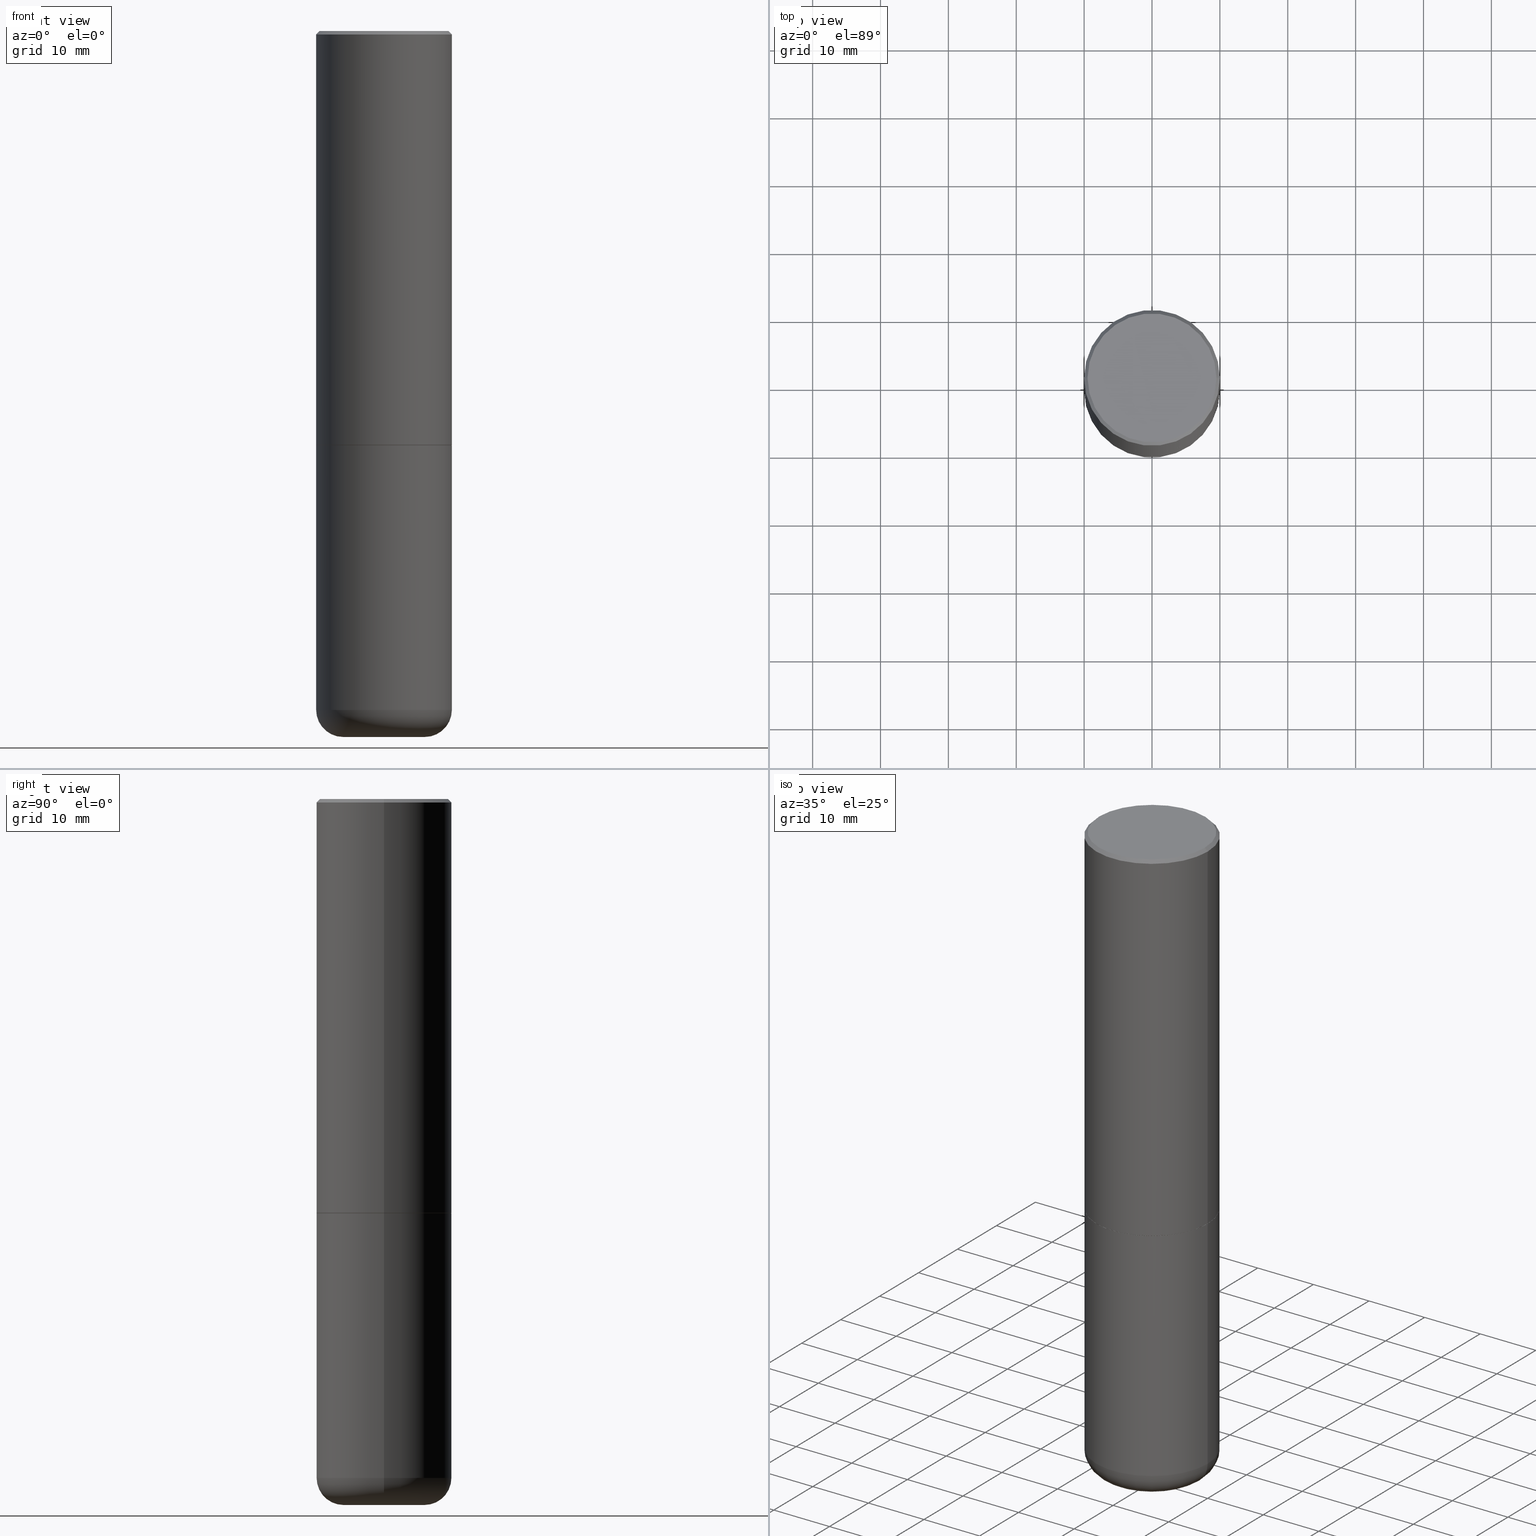
[diagram: canonical four-view strip — front | top / right | iso, engineering-drawing reading convention]
A machine part, canonical four-view strip (front | top / right | iso — engineering-drawing reading convention). The complete STEP part file that produces these views, byte-faithful:
ISO-10303-21;
HEADER;
FILE_DESCRIPTION (( 'STEP AP203' ),
    '1' );
FILE_NAME ('47075.STEP',
    '2024-03-05T18:03:19',
    ( '' ),
    ( '' ),
    'SwSTEP 2.0',
    'SolidWorks 2023',
    '' );
FILE_SCHEMA (( 'CONFIG_CONTROL_DESIGN' ));
ENDSEC;

DATA;
#1 = SECURITY_CLASSIFICATION_LEVEL ( 'unclassified' ) ;
#2 = CC_DESIGN_PERSON_AND_ORGANIZATION_ASSIGNMENT ( #174, #28, ( #66 ) ) ;
#3 = CARTESIAN_POINT ( 'NONE',  ( 0.3937000000000000499, -2.770807688499515734E-15, -0.02000000000000008715 ) ) ;
#4 = ORIENTED_EDGE ( 'NONE', *, *, #131, .F. ) ;
#5 = AXIS2_PLACEMENT_3D ( 'NONE', #212, #144, #364 ) ;
#6 = PERSON_AND_ORGANIZATION_ROLE ( 'classification_officer' ) ;
#7 = AXIS2_PLACEMENT_3D ( 'NONE', #231, #319, #286 ) ;
#8 = LINE ( 'NONE', #10, #402 ) ;
#9 = ORIENTED_EDGE ( 'NONE', *, *, #281, .F. ) ;
#10 = CARTESIAN_POINT ( 'NONE',  ( 0.3937000000000001609, -2.749192406205084400E-15, 1.919750796630860732E-29 ) ) ;
#11 = EDGE_LOOP ( 'NONE', ( #136, #4 ) ) ;
#12 = ADVANCED_FACE ( 'NONE', ( #32 ), #24, .T. ) ;
#13 = FACE_OUTER_BOUND ( 'NONE', #382, .T. ) ;
#14 = CIRCLE ( 'NONE', #81, 0.3937000000000000499 ) ;
#15 = DIRECTION ( 'NONE',  ( -1.000000000000000000, 6.982962677686265922E-15, -4.876176775795935793E-29 ) ) ;
#16 = CARTESIAN_POINT ( 'NONE',  ( 5.873037884934224349E-29, -8.385141583365698841E-15, -2.401600000000000179 ) ) ;
#17 = EDGE_CURVE ( 'NONE', #134, #290, #192, .T. ) ;
#18 = DIRECTION ( 'NONE',  ( 1.000000000000000000, -6.982962677686265922E-15, 0.000000000000000000 ) ) ;
#19 = AXIS2_PLACEMENT_3D ( 'NONE', #296, #85, #271 ) ;
#20 = CARTESIAN_POINT ( 'NONE',  ( 0.2362000000000000210, -1.539533781549495994E-14, -3.937000000000000277 ) ) ;
#21 = DIRECTION ( 'NONE',  ( -2.445468806185136597E-29, 3.491481338843145583E-15, 1.000000000000000000 ) ) ;
#22 = CC_DESIGN_PERSON_AND_ORGANIZATION_ASSIGNMENT ( #318, #284, ( #393 ) ) ;
#23 = DIRECTION ( 'NONE',  ( 1.000000000000000000, -6.982962677686265922E-15, 4.876176775795935793E-29 ) ) ;
#24 = CONICAL_SURFACE ( 'NONE', #264, 0.3926999999999999935, 0.7853981633972775267 ) ;
#25 = ORIENTED_EDGE ( 'NONE', *, *, #41, .T. ) ;
#26 =( LENGTH_UNIT ( ) NAMED_UNIT ( * ) SI_UNIT ( $, .METRE. ) );
#27 = EDGE_LOOP ( 'NONE', ( #257, #169, #233, #259 ) ) ;
#28 = PERSON_AND_ORGANIZATION_ROLE ( 'creator' ) ;
#29 = ADVANCED_FACE ( 'NONE', ( #297 ), #115, .T. ) ;
#30 = CARTESIAN_POINT ( 'NONE',  ( -5.428027354543142984E-45, 7.749784485978325769E-31, 2.219626494852213988E-16 ) ) ;
#31 = ORIENTED_EDGE ( 'NONE', *, *, #300, .F. ) ;
#32 = FACE_OUTER_BOUND ( 'NONE', #130, .T. ) ;
#33 = LINE ( 'NONE', #282, #298 ) ;
#34 = DIRECTION ( 'NONE',  ( -2.445468806185136597E-29, 3.491481338843145583E-15, 1.000000000000000000 ) ) ;
#35 = APPROVAL_STATUS ( 'not_yet_approved' ) ;
#36 = DIRECTION ( 'NONE',  ( -0.7071067811864267805, 7.493145998869918709E-15, 0.7071067811866682540 ) ) ;
#37 = APPROVAL ( #35, 'UNSPECIFIED' ) ;
#38 = CYLINDRICAL_SURFACE ( 'NONE', #289, 0.3937000000000000499 ) ;
#39 = ORIENTED_EDGE ( 'NONE', *, *, #111, .T. ) ;
#40 = AXIS2_PLACEMENT_3D ( 'NONE', #299, #367, #15 ) ;
#41 = EDGE_CURVE ( 'NONE', #104, #337, #240, .T. ) ;
#42 = LINE ( 'NONE', #142, #227 ) ;
#43 = ORIENTED_EDGE ( 'NONE', *, *, #338, .F. ) ;
#44 = DIRECTION ( 'NONE',  ( 2.438088387897960049E-29, -3.491481338843145188E-15, -1.000000000000000000 ) ) ;
#45 = FACE_OUTER_BOUND ( 'NONE', #173, .T. ) ;
#46 = DIRECTION ( 'NONE',  ( 1.000000000000000000, -6.982962677686266711E-15, 4.877734241229879050E-29 ) ) ;
#47 = AXIS2_PLACEMENT_3D ( 'NONE', #50, #83, #400 ) ;
#48 = CONICAL_SURFACE ( 'NONE', #365, 0.3926999999999999935, 0.7853981633972775267 ) ;
#49 = APPROVAL_PERSON_ORGANIZATION ( #339, #323, #302 ) ;
#50 = CARTESIAN_POINT ( 'NONE',  ( -0.2362000000000000210, -1.206766008916010702E-14, -3.937000000000000277 ) ) ;
#51 = EDGE_CURVE ( 'NONE', #307, #252, #187, .T. ) ;
#52 = ADVANCED_FACE ( 'NONE', ( #329 ), #245, .F. ) ;
#53 = CARTESIAN_POINT ( 'NONE',  ( 1.001297202692504215E-28, -1.429587034189326149E-14, -4.094500000000000028 ) ) ;
#54 = SHAPE_DEFINITION_REPRESENTATION ( #291, #335 ) ;
#55 = LENGTH_MEASURE_WITH_UNIT ( LENGTH_MEASURE( 0.02539999999999999897 ), #26 );
#56 = EDGE_CURVE ( 'NONE', #416, #162, #324, .T. ) ;
#57 = AXIS2_PLACEMENT_3D ( 'NONE', #77, #288, #258 ) ;
#58 = DIRECTION ( 'NONE',  ( -2.445468806185136597E-29, 3.491481338843145583E-15, 1.000000000000000000 ) ) ;
#59 = DIRECTION ( 'NONE',  ( -2.445468806185136597E-29, 3.491481338843145583E-15, 1.000000000000000000 ) ) ;
#60 = CARTESIAN_POINT ( 'NONE',  ( 5.873037884934224349E-29, -8.385141583365698841E-15, -2.401600000000000179 ) ) ;
#61 = ORIENTED_EDGE ( 'NONE', *, *, #397, .F. ) ;
#62 = DIRECTION ( 'NONE',  ( -2.445468806185136597E-29, 3.491481338843145583E-15, 1.000000000000000000 ) ) ;
#63 = PLANE ( 'NONE',  #325 ) ;
#64 = CIRCLE ( 'NONE', #208, 0.3937000000000000499 ) ;
#65 = EDGE_CURVE ( 'NONE', #304, #283, #313, .T. ) ;
#66 = PRODUCT_DEFINITION ( 'UNKNOWN', '', #393, #95 ) ;
#67 = APPROVAL_STATUS ( 'not_yet_approved' ) ;
#68 = CARTESIAN_POINT ( 'NONE',  ( 0.000000000000000000, 0.000000000000000000, 0.000000000000000000 ) ) ;
#69 = ORIENTED_EDGE ( 'NONE', *, *, #281, .T. ) ;
#70 = DIRECTION ( 'NONE',  ( 0.7071067811865467956, -7.319954787623254468E-15, -0.7071067811865482389 ) ) ;
#71 = ORIENTED_EDGE ( 'NONE', *, *, #41, .F. ) ;
#72 = CONICAL_SURFACE ( 'NONE', #193, 0.3937000000000000499, 0.7853981633974472798 ) ;
#73 = APPROVAL_DATE_TIME ( #389, #37 ) ;
#74 = CARTESIAN_POINT ( 'NONE',  ( 4.890937612370294178E-31, -6.982962677686321191E-17, -0.02000000000000008715 ) ) ;
#75 = DIRECTION ( 'NONE',  ( -2.445468806185136597E-29, 3.491481338843145583E-15, 1.000000000000000000 ) ) ;
#76 = CARTESIAN_POINT ( 'NONE',  ( 9.627810689950883669E-29, -1.374596203102546341E-14, -3.937000000000000277 ) ) ;
#77 = CARTESIAN_POINT ( 'NONE',  ( 0.000000000000000000, 0.000000000000000000, 0.000000000000000000 ) ) ;
#78 = PRODUCT ( '47075', '47075', '', ( #149 ) ) ;
#79 = CIRCLE ( 'NONE', #301, 0.1575000000000000566 ) ;
#80 = EDGE_LOOP ( 'NONE', ( #407, #232, #112, #110 ) ) ;
#81 = AXIS2_PLACEMENT_3D ( 'NONE', #372, #222, #89 ) ;
#82 = LOCAL_TIME ( 13, 3, 18.00000000000000000, #414 ) ;
#83 = DIRECTION ( 'NONE',  ( 7.105427357601001859E-15, 1.000000000000000000, -3.491481338843145583E-15 ) ) ;
#84 = ADVANCED_FACE ( 'NONE', ( #243 ), #331, .T. ) ;
#85 = DIRECTION ( 'NONE',  ( 2.438088387897960049E-29, -3.491481338843145188E-15, -1.000000000000000000 ) ) ;
#86 = CARTESIAN_POINT ( 'NONE',  ( 5.873037884934225470E-29, -8.385141583365700419E-15, -2.401600000000000623 ) ) ;
#87 = DIRECTION ( 'NONE',  ( 1.000000000000000000, -6.982962677686272233E-15, 0.000000000000000000 ) ) ;
#88 = AXIS2_PLACEMENT_3D ( 'NONE', #76, #199, #102 ) ;
#89 = DIRECTION ( 'NONE',  ( 1.000000000000000000, -6.982962677686265922E-15, 0.000000000000000000 ) ) ;
#90 = SECURITY_CLASSIFICATION ( '', '', #1 ) ;
#91 = DIRECTION ( 'NONE',  ( 1.000000000000000000, -6.982962677686267499E-15, 0.000000000000000000 ) ) ;
#92 = LINE ( 'NONE', #272, #157 ) ;
#93 = VERTEX_POINT ( 'NONE', #295 ) ;
#94 = ADVANCED_FACE ( 'NONE', ( #13 ), #72, .T. ) ;
#95 = DESIGN_CONTEXT ( 'detailed design', #230, 'design' ) ;
#96 = AXIS2_PLACEMENT_3D ( 'NONE', #106, #316, #99 ) ;
#97 = LOCAL_TIME ( 13, 3, 18.00000000000000000, #98 ) ;
#98 = COORDINATED_UNIVERSAL_TIME_OFFSET ( 5, 0, .BEHIND. ) ;
#99 = DIRECTION ( 'NONE',  ( 1.000000000000000000, -6.982962677686270655E-15, 0.000000000000000000 ) ) ;
#100 = ORIENTED_EDGE ( 'NONE', *, *, #65, .T. ) ;
#101 = EDGE_CURVE ( 'NONE', #287, #93, #350, .T. ) ;
#102 = DIRECTION ( 'NONE',  ( 1.000000000000000000, -6.982962677686266711E-15, 4.883557194083112340E-29 ) ) ;
#103 = EDGE_LOOP ( 'NONE', ( #61, #31 ) ) ;
#104 = VERTEX_POINT ( 'NONE', #158 ) ;
#105 = AXIS2_PLACEMENT_3D ( 'NONE', #150, #247, #91 ) ;
#106 = CARTESIAN_POINT ( 'NONE',  ( 1.001297202692504215E-28, -1.429587034189326149E-14, -4.094500000000000028 ) ) ;
#107 = DATE_AND_TIME ( #166, #82 ) ;
#108 = DIRECTION ( 'NONE',  ( 1.000000000000000000, -6.982962677686267499E-15, 0.000000000000000000 ) ) ;
#109 = MANIFOLD_SOLID_BREP ( 'Body-Move/Copy2[1]', #198 ) ;
#110 = ORIENTED_EDGE ( 'NONE', *, *, #274, .F. ) ;
#111 = EDGE_CURVE ( 'NONE', #307, #337, #358, .T. ) ;
#112 = ORIENTED_EDGE ( 'NONE', *, *, #101, .F. ) ;
#113 = APPROVAL_PERSON_ORGANIZATION ( #387, #37, #348 ) ;
#114 = CARTESIAN_POINT ( 'NONE',  ( 0.000000000000000000, 0.000000000000000000, 0.000000000000000000 ) ) ;
#115 = CYLINDRICAL_SURFACE ( 'NONE', #5, 0.3937000000000001609 ) ;
#116 = CARTESIAN_POINT ( 'NONE',  ( 4.890937612370294178E-31, -6.982962677686321191E-17, -0.02000000000000008715 ) ) ;
#117 = EDGE_CURVE ( 'NONE', #93, #287, #14, .T. ) ;
#118 = CC_DESIGN_APPROVAL ( #404, ( #66 ) ) ;
#119 = CALENDAR_DATE ( 2024, 5, 3 ) ;
#120 = PERSON_AND_ORGANIZATION ( #366, #159 ) ;
#121 = AXIS2_PLACEMENT_3D ( 'NONE', #74, #260, #179 ) ;
#122 = LOCAL_TIME ( 13, 3, 18.00000000000000000, #344 ) ;
#123 = ORIENTED_EDGE ( 'NONE', *, *, #368, .T. ) ;
#124 =( CONVERSION_BASED_UNIT ( 'INCH', #55 ) LENGTH_UNIT ( ) NAMED_UNIT ( #201 ) );
#125 = DIRECTION ( 'NONE',  ( 1.000000000000000000, -6.982962677686265133E-15, 0.000000000000000000 ) ) ;
#126 = PRODUCT_RELATED_PRODUCT_CATEGORY ( 'detail', '', ( #78 ) ) ;
#127 = ORIENTED_EDGE ( 'NONE', *, *, #253, .F. ) ;
#128 = LINE ( 'NONE', #409, #266 ) ;
#129 = CIRCLE ( 'NONE', #278, 0.2362000000000000766 ) ;
#130 = EDGE_LOOP ( 'NONE', ( #100, #69, #262, #202 ) ) ;
#131 = EDGE_CURVE ( 'NONE', #283, #304, #328, .T. ) ;
#132 = DIRECTION ( 'NONE',  ( 1.000000000000000000, -6.982962677686265922E-15, 4.876176775795935793E-29 ) ) ;
#133 = CARTESIAN_POINT ( 'NONE',  ( 5.873037884934225470E-29, -8.385141583365700419E-15, -2.401600000000000623 ) ) ;
#134 = VERTEX_POINT ( 'NONE', #195 ) ;
#135 = CYLINDRICAL_SURFACE ( 'NONE', #57, 0.3937000000000000499 ) ;
#136 = ORIENTED_EDGE ( 'NONE', *, *, #65, .F. ) ;
#137 = TOROIDAL_SURFACE ( 'NONE', #148, 0.2362000000000000210, 0.1575000000000000844 ) ;
#138 = CC_DESIGN_APPROVAL ( #37, ( #393 ) ) ;
#139 = ADVANCED_FACE ( 'NONE', ( #218 ), #63, .F. ) ;
#140 = EDGE_LOOP ( 'NONE', ( #276, #347, #312, #43 ) ) ;
#141 = EDGE_CURVE ( 'NONE', #162, #93, #92, .T. ) ;
#142 = CARTESIAN_POINT ( 'NONE',  ( -0.3926999999999999935, -5.594840260035786640E-15, -2.401600000000000623 ) ) ;
#143 = CIRCLE ( 'NONE', #96, 0.2362000000000000766 ) ;
#144 = DIRECTION ( 'NONE',  ( -2.445468806185136597E-29, 3.491481338843145583E-15, 1.000000000000000000 ) ) ;
#145 = CARTESIAN_POINT ( 'NONE',  ( 5.873037884934225470E-29, -8.385141583365700419E-15, -2.401600000000000623 ) ) ;
#146 = AXIS2_PLACEMENT_3D ( 'NONE', #207, #206, #18 ) ;
#147 = DIRECTION ( 'NONE',  ( 0.000000000000000000, 0.000000000000000000, 1.000000000000000000 ) ) ;
#148 = AXIS2_PLACEMENT_3D ( 'NONE', #215, #21, #275 ) ;
#149 = MECHANICAL_CONTEXT ( 'NONE', #210, 'mechanical' ) ;
#150 = CARTESIAN_POINT ( 'NONE',  ( 9.627810689950883669E-29, -1.374596203102546341E-14, -3.937000000000000277 ) ) ;
#151 = CALENDAR_DATE ( 2024, 5, 3 ) ;
#152 = DIRECTION ( 'NONE',  ( 1.000000000000000000, -6.982962677686268288E-15, 0.000000000000000000 ) ) ;
#153 = ORIENTED_EDGE ( 'NONE', *, *, #397, .T. ) ;
#154 = DATE_TIME_ROLE ( 'classification_date' ) ;
#155 = EDGE_CURVE ( 'NONE', #290, #134, #168, .T. ) ;
#156 = DIRECTION ( 'NONE',  ( 1.000000000000000000, -6.982962677686270655E-15, 0.000000000000000000 ) ) ;
#157 = VECTOR ( 'NONE', #340, 39.37007874015748143 ) ;
#158 = CARTESIAN_POINT ( 'NONE',  ( -0.2362000000000000766, -1.178306184018292647E-14, -4.094500000000000028 ) ) ;
#159 = ORGANIZATION ( 'UNSPECIFIED', 'UNSPECIFIED', '' ) ;
#160 =( NAMED_UNIT ( * ) PLANE_ANGLE_UNIT ( ) SI_UNIT ( $, .RADIAN. ) );
#161 = DIRECTION ( 'NONE',  ( -2.445468806185136877E-29, 3.491481338843145188E-15, 1.000000000000000000 ) ) ;
#162 = VERTEX_POINT ( 'NONE', #164 ) ;
#163 = COORDINATED_UNIVERSAL_TIME_OFFSET ( 5, 0, .BEHIND. ) ;
#164 = CARTESIAN_POINT ( 'NONE',  ( -0.3937000000000003830, -1.428333113714341032E-15, -2.400600000000000289 ) ) ;
#165 = EDGE_CURVE ( 'NONE', #337, #413, #128, .T. ) ;
#166 = CALENDAR_DATE ( 2024, 5, 3 ) ;
#167 = FACE_OUTER_BOUND ( 'NONE', #140, .T. ) ;
#168 = CIRCLE ( 'NONE', #408, 0.3736999999999997546 ) ;
#169 = ORIENTED_EDGE ( 'NONE', *, *, #253, .T. ) ;
#170 = CC_DESIGN_PERSON_AND_ORGANIZATION_ASSIGNMENT ( #216, #334, ( #78 ) ) ;
#171 = APPROVAL_DATE_TIME ( #310, #404 ) ;
#172 = FACE_OUTER_BOUND ( 'NONE', #191, .T. ) ;
#173 = EDGE_LOOP ( 'NONE', ( #242, #395 ) ) ;
#174 = PERSON_AND_ORGANIZATION ( #366, #159 ) ;
#175 = DIRECTION ( 'NONE',  ( -2.445468806185136597E-29, 3.491481338843145583E-15, 1.000000000000000000 ) ) ;
#176 = PERSON_AND_ORGANIZATION_ROLE ( 'design_supplier' ) ;
#177 = EDGE_CURVE ( 'NONE', #413, #252, #333, .T. ) ;
#178 = ADVANCED_FACE ( 'NONE', ( #376 ), #137, .T. ) ;
#179 = DIRECTION ( 'NONE',  ( -1.000000000000000000, 6.982962677686265922E-15, 0.000000000000000000 ) ) ;
#180 = ORIENTED_EDGE ( 'NONE', *, *, #51, .T. ) ;
#181 = AXIS2_PLACEMENT_3D ( 'NONE', #311, #175, #108 ) ;
#182 = CARTESIAN_POINT ( 'NONE',  ( 0.3937000000000000499, -2.770807688499515734E-15, -0.02000000000000008715 ) ) ;
#183 = CYLINDRICAL_SURFACE ( 'NONE', #384, 0.3937000000000001609 ) ;
#184 = PLANE ( 'NONE',  #19 ) ;
#185 = DIRECTION ( 'NONE',  ( -1.000000000000000000, 6.982962677686265922E-15, 0.000000000000000000 ) ) ;
#186 = CLOSED_SHELL ( 'NONE', ( #12, #345, #217, #94, #29, #188, #139, #52 ) ) ;
#187 = LINE ( 'NONE', #209, #341 ) ;
#188 = ADVANCED_FACE ( 'NONE', ( #411 ), #48, .T. ) ;
#189 = AXIS2_PLACEMENT_3D ( 'NONE', #251, #190, #248 ) ;
#190 = DIRECTION ( 'NONE',  ( -2.445468806185136597E-29, 3.491481338843145583E-15, 1.000000000000000000 ) ) ;
#191 = EDGE_LOOP ( 'NONE', ( #153, #25, #354, #261 ) ) ;
#192 = CIRCLE ( 'NONE', #401, 0.3736999999999997546 ) ;
#193 = AXIS2_PLACEMENT_3D ( 'NONE', #237, #265, #185 ) ;
#194 = EDGE_LOOP ( 'NONE', ( #9, #219, #123, #127 ) ) ;
#195 = CARTESIAN_POINT ( 'NONE',  ( -0.3736999999999997546, 2.644447966039789058E-15, 2.219626494852030085E-16 ) ) ;
#196 = AXIS2_PLACEMENT_3D ( 'NONE', #53, #44, #399 ) ;
#197 = CONICAL_SURFACE ( 'NONE', #121, 0.3937000000000000499, 0.7853981633974472798 ) ;
#198 = CLOSED_SHELL ( 'NONE', ( #322, #239, #361, #293, #178, #84 ) ) ;
#199 = DIRECTION ( 'NONE',  ( -2.445468806185136597E-29, 3.491481338843145583E-15, 1.000000000000000000 ) ) ;
#200 = CARTESIAN_POINT ( 'NONE',  ( 0.3937000000000000499, -1.113433398957078206E-14, -2.401600000000000179 ) ) ;
#201 = DIMENSIONAL_EXPONENTS ( 1.000000000000000000, 0.000000000000000000, 0.000000000000000000, 0.000000000000000000, 0.000000000000000000, 0.000000000000000000, 0.000000000000000000 ) ;
#202 = ORIENTED_EDGE ( 'NONE', *, *, #368, .F. ) ;
#203 = ORIENTED_EDGE ( 'NONE', *, *, #383, .T. ) ;
#204 = AXIS2_PLACEMENT_3D ( 'NONE', #116, #238, #363 ) ;
#205 = AXIS2_PLACEMENT_3D ( 'NONE', #60, #378, #125 ) ;
#206 = DIRECTION ( 'NONE',  ( -2.445468806185136597E-29, 3.491481338843145583E-15, 1.000000000000000000 ) ) ;
#207 = CARTESIAN_POINT ( 'NONE',  ( 5.870592416128038746E-29, -8.381650102026855834E-15, -2.400600000000000289 ) ) ;
#208 = AXIS2_PLACEMENT_3D ( 'NONE', #16, #362, #327 ) ;
#209 = CARTESIAN_POINT ( 'NONE',  ( 0.3937000000000000499, -2.749192406205083217E-15, 1.919750796630860172E-29 ) ) ;
#210 = APPLICATION_CONTEXT ( 'configuration controlled 3d designs of mechanical parts and assemblies' ) ;
#211 = APPROVAL_STATUS ( 'not_yet_approved' ) ;
#212 = CARTESIAN_POINT ( 'NONE',  ( 0.000000000000000000, 0.000000000000000000, 0.000000000000000000 ) ) ;
#213 = APPROVAL_DATE_TIME ( #369, #323 ) ;
#214 = LINE ( 'NONE', #220, #254 ) ;
#215 = CARTESIAN_POINT ( 'NONE',  ( 9.627810689950883669E-29, -1.374596203102546341E-14, -3.937000000000000277 ) ) ;
#216 = PERSON_AND_ORGANIZATION ( #366, #159 ) ;
#217 = ADVANCED_FACE ( 'NONE', ( #167 ), #197, .T. ) ;
#218 = FACE_OUTER_BOUND ( 'NONE', #11, .T. ) ;
#219 = ORIENTED_EDGE ( 'NONE', *, *, #131, .T. ) ;
#220 = CARTESIAN_POINT ( 'NONE',  ( 0.3926999999999999935, -1.112735102689309762E-14, -2.401600000000000623 ) ) ;
#221 = DIRECTION ( 'NONE',  ( 1.000000000000000000, -6.982962677686266711E-15, 4.877734241229879050E-29 ) ) ;
#222 = DIRECTION ( 'NONE',  ( -2.445468806185136597E-29, 3.491481338843145583E-15, 1.000000000000000000 ) ) ;
#223 = EDGE_CURVE ( 'NONE', #290, #287, #353, .T. ) ;
#224 = CARTESIAN_POINT ( 'NONE',  ( 0.3926999999999999935, -1.112735102689309762E-14, -2.401600000000000623 ) ) ;
#225 = APPROVAL_ROLE ( '' ) ;
#226 = EDGE_LOOP ( 'NONE', ( #39, #391, #351, #317 ) ) ;
#227 = VECTOR ( 'NONE', #36, 39.37007874015748143 ) ;
#228 = CARTESIAN_POINT ( 'NONE',  ( -5.428027354543142984E-45, 7.749784485978325769E-31, 2.219626494852213988E-16 ) ) ;
#229 = CARTESIAN_POINT ( 'NONE',  ( 0.3937000000000001054, -1.649515443723054663E-14, -3.937000000000000277 ) ) ;
#230 = APPLICATION_CONTEXT ( 'configuration controlled 3d designs of mechanical parts and assemblies' ) ;
#231 = CARTESIAN_POINT ( 'NONE',  ( 5.870592416128038746E-29, -8.381650102026855834E-15, -2.400600000000000289 ) ) ;
#232 = ORIENTED_EDGE ( 'NONE', *, *, #141, .T. ) ;
#233 = ORIENTED_EDGE ( 'NONE', *, *, #274, .T. ) ;
#234 = CIRCLE ( 'NONE', #7, 0.3937000000000002720 ) ;
#235 = CC_DESIGN_APPROVAL ( #323, ( #90 ) ) ;
#236 = DIRECTION ( 'NONE',  ( 1.000000000000000000, -6.982962677686266711E-15, 4.876176775795935793E-29 ) ) ;
#237 = CARTESIAN_POINT ( 'NONE',  ( 4.890937612370294178E-31, -6.982962677686321191E-17, -0.02000000000000008715 ) ) ;
#238 = DIRECTION ( 'NONE',  ( -2.445468806185136597E-29, 3.491481338843145583E-15, 1.000000000000000000 ) ) ;
#239 = ADVANCED_FACE ( 'NONE', ( #172 ), #398, .T. ) ;
#240 = CIRCLE ( 'NONE', #47, 0.1575000000000000566 ) ;
#241 = VECTOR ( 'NONE', #70, 39.37007874015748143 ) ;
#242 = ORIENTED_EDGE ( 'NONE', *, *, #355, .T. ) ;
#243 = FACE_OUTER_BOUND ( 'NONE', #103, .T. ) ;
#244 = APPLICATION_PROTOCOL_DEFINITION ( 'international standard', 'config_control_design', 1994, #210 ) ;
#245 = PLANE ( 'NONE',  #40 ) ;
#246 = EDGE_CURVE ( 'NONE', #337, #307, #342, .T. ) ;
#247 = DIRECTION ( 'NONE',  ( -2.445468806185136597E-29, 3.491481338843145583E-15, 1.000000000000000000 ) ) ;
#248 = DIRECTION ( 'NONE',  ( 1.000000000000000000, -6.982962677686268288E-15, 0.000000000000000000 ) ) ;
#249 = UNCERTAINTY_MEASURE_WITH_UNIT (LENGTH_MEASURE( 1.000000000000000082E-05 ), #124, 'distance_accuracy_value', 'NONE');
#250 =( NAMED_UNIT ( * ) SI_UNIT ( $, .STERADIAN. ) SOLID_ANGLE_UNIT ( ) );
#251 = CARTESIAN_POINT ( 'NONE',  ( 5.873037884934225470E-29, -8.385141583365700419E-15, -2.401600000000000623 ) ) ;
#252 = VERTEX_POINT ( 'NONE', #200 ) ;
#253 = EDGE_CURVE ( 'NONE', #162, #416, #234, .T. ) ;
#254 = VECTOR ( 'NONE', #370, 39.37007874015748143 ) ;
#255 = ORIENTED_EDGE ( 'NONE', *, *, #155, .T. ) ;
#256 = CALENDAR_DATE ( 2024, 5, 3 ) ;
#257 = ORIENTED_EDGE ( 'NONE', *, *, #141, .F. ) ;
#258 = DIRECTION ( 'NONE',  ( 1.000000000000000000, -6.982962677686265922E-15, 4.876176775795935793E-29 ) ) ;
#259 = ORIENTED_EDGE ( 'NONE', *, *, #117, .F. ) ;
#260 = DIRECTION ( 'NONE',  ( 2.445468806185136597E-29, -3.491481338843145583E-15, -1.000000000000000000 ) ) ;
#261 = ORIENTED_EDGE ( 'NONE', *, *, #383, .F. ) ;
#262 = ORIENTED_EDGE ( 'NONE', *, *, #56, .F. ) ;
#263 = CC_DESIGN_PERSON_AND_ORGANIZATION_ASSIGNMENT ( #352, #176, ( #393 ) ) ;
#264 = AXIS2_PLACEMENT_3D ( 'NONE', #133, #34, #418 ) ;
#265 = DIRECTION ( 'NONE',  ( 2.445468806185136597E-29, -3.491481338843145583E-15, -1.000000000000000000 ) ) ;
#266 = VECTOR ( 'NONE', #161, 39.37007874015748143 ) ;
#267 = DIRECTION ( 'NONE',  ( 1.000000000000000000, 0.000000000000000000, 0.000000000000000000 ) ) ;
#268 = DIRECTION ( 'NONE',  ( -2.445468806185136877E-29, 3.491481338843145188E-15, 1.000000000000000000 ) ) ;
#269 = APPLICATION_PROTOCOL_DEFINITION ( 'international standard', 'config_control_design', 1994, #230 ) ;
#270 = ORIENTED_EDGE ( 'NONE', *, *, #17, .F. ) ;
#271 = DIRECTION ( 'NONE',  ( -1.000000000000000000, 6.982962677686265922E-15, -4.876176775795935793E-29 ) ) ;
#272 = CARTESIAN_POINT ( 'NONE',  ( -0.3937000000000001609, 2.797406750687515575E-15, -1.936584745033357296E-29 ) ) ;
#273 = ORIENTED_EDGE ( 'NONE', *, *, #300, .T. ) ;
#274 = EDGE_CURVE ( 'NONE', #416, #287, #8, .T. ) ;
#275 = DIRECTION ( 'NONE',  ( 1.000000000000000000, -6.982962677686266711E-15, 4.883557194083112340E-29 ) ) ;
#276 = ORIENTED_EDGE ( 'NONE', *, *, #155, .F. ) ;
#277 = ORIENTED_EDGE ( 'NONE', *, *, #17, .T. ) ;
#278 = AXIS2_PLACEMENT_3D ( 'NONE', #305, #62, #156 ) ;
#279 = FACE_OUTER_BOUND ( 'NONE', #410, .T. ) ;
#280 = EDGE_LOOP ( 'NONE', ( #277, #255 ) ) ;
#281 = EDGE_CURVE ( 'NONE', #283, #162, #42, .T. ) ;
#282 = CARTESIAN_POINT ( 'NONE',  ( -0.3937000000000000499, 2.679362779428219918E-15, -0.02000000000000008715 ) ) ;
#283 = VERTEX_POINT ( 'NONE', #385 ) ;
#284 = PERSON_AND_ORGANIZATION_ROLE ( 'creator' ) ;
#285 = CC_DESIGN_PERSON_AND_ORGANIZATION_ASSIGNMENT ( #392, #6, ( #90 ) ) ;
#286 = DIRECTION ( 'NONE',  ( 1.000000000000000000, -6.982962677686265922E-15, 0.000000000000000000 ) ) ;
#287 = VERTEX_POINT ( 'NONE', #3 ) ;
#288 = DIRECTION ( 'NONE',  ( -2.445468806185136597E-29, 3.491481338843145583E-15, 1.000000000000000000 ) ) ;
#289 = AXIS2_PLACEMENT_3D ( 'NONE', #68, #415, #132 ) ;
#290 = VERTEX_POINT ( 'NONE', #320 ) ;
#291 = PRODUCT_DEFINITION_SHAPE ( 'NONE', 'NONE',  #66 ) ;
#292 = ORIENTED_EDGE ( 'NONE', *, *, #223, .F. ) ;
#293 = ADVANCED_FACE ( 'NONE', ( #279 ), #135, .T. ) ;
#294 = DIRECTION ( 'NONE',  ( -2.445468806185136597E-29, 3.491481338843145583E-15, 1.000000000000000000 ) ) ;
#295 = CARTESIAN_POINT ( 'NONE',  ( -0.3937000000000000499, 2.679362779428219918E-15, -0.02000000000000008715 ) ) ;
#296 = CARTESIAN_POINT ( 'NONE',  ( 5.873037884934224349E-29, -8.385141583365698841E-15, -2.401600000000000179 ) ) ;
#297 = FACE_OUTER_BOUND ( 'NONE', #27, .T. ) ;
#298 = VECTOR ( 'NONE', #390, 39.37007874015748143 ) ;
#299 = CARTESIAN_POINT ( 'NONE',  ( 2.609533152651355831E-15, 0.3736999999999997546, -1.193785251583072147E-15 ) ) ;
#300 = EDGE_CURVE ( 'NONE', #104, #396, #143, .T. ) ;
#301 = AXIS2_PLACEMENT_3D ( 'NONE', #20, #375, #87 ) ;
#302 = APPROVAL_ROLE ( '' ) ;
#303 = DIRECTION ( 'NONE',  ( -2.438088387897960049E-29, 3.491481338843145188E-15, 1.000000000000000000 ) ) ;
#304 = VERTEX_POINT ( 'NONE', #224 ) ;
#305 = CARTESIAN_POINT ( 'NONE',  ( 1.001297202692504215E-28, -1.429587034189326149E-14, -4.094500000000000028 ) ) ;
#306 = APPROVAL_PERSON_ORGANIZATION ( #120, #404, #225 ) ;
#307 = VERTEX_POINT ( 'NONE', #229 ) ;
#308 = CARTESIAN_POINT ( 'NONE',  ( 0.000000000000000000, 0.000000000000000000, 0.000000000000000000 ) ) ;
#309 = CARTESIAN_POINT ( 'NONE',  ( 5.873037884934225470E-29, -8.385141583365698841E-15, -2.401600000000000623 ) ) ;
#310 = DATE_AND_TIME ( #256, #122 ) ;
#311 = CARTESIAN_POINT ( 'NONE',  ( 9.627810689950883669E-29, -1.374596203102546341E-14, -3.937000000000000277 ) ) ;
#312 = ORIENTED_EDGE ( 'NONE', *, *, #101, .T. ) ;
#313 = CIRCLE ( 'NONE', #373, 0.3926999999999999935 ) ;
#314 = DATE_TIME_ROLE ( 'creation_date' ) ;
#315 =( GEOMETRIC_REPRESENTATION_CONTEXT ( 3 ) GLOBAL_UNCERTAINTY_ASSIGNED_CONTEXT ( ( #249 ) ) GLOBAL_UNIT_ASSIGNED_CONTEXT ( ( #124, #160, #250 ) ) REPRESENTATION_CONTEXT ( 'NONE', 'WORKASPACE' ) );
#316 = DIRECTION ( 'NONE',  ( -2.445468806185136597E-29, 3.491481338843145583E-15, 1.000000000000000000 ) ) ;
#317 = ORIENTED_EDGE ( 'NONE', *, *, #51, .F. ) ;
#318 = PERSON_AND_ORGANIZATION ( #366, #159 ) ;
#319 = DIRECTION ( 'NONE',  ( -2.445468806185136597E-29, 3.491481338843145583E-15, 1.000000000000000000 ) ) ;
#320 = CARTESIAN_POINT ( 'NONE',  ( 0.3736999999999997546, -2.667287895133366781E-15, 2.219626494852398384E-16 ) ) ;
#321 = ORIENTED_EDGE ( 'NONE', *, *, #177, .F. ) ;
#322 = ADVANCED_FACE ( 'NONE', ( #346 ), #38, .T. ) ;
#323 = APPROVAL ( #211, 'UNSPECIFIED' ) ;
#324 = CIRCLE ( 'NONE', #146, 0.3937000000000002720 ) ;
#325 = AXIS2_PLACEMENT_3D ( 'NONE', #309, #303, #23 ) ;
#326 = DIRECTION ( 'NONE',  ( 1.000000000000000000, -6.982962677686268288E-15, 0.000000000000000000 ) ) ;
#327 = DIRECTION ( 'NONE',  ( 1.000000000000000000, -6.982962677686265133E-15, 0.000000000000000000 ) ) ;
#328 = CIRCLE ( 'NONE', #189, 0.3926999999999999935 ) ;
#329 = FACE_OUTER_BOUND ( 'NONE', #280, .T. ) ;
#330 = COORDINATED_UNIVERSAL_TIME_OFFSET ( 5, 0, .BEHIND. ) ;
#331 = PLANE ( 'NONE',  #196 ) ;
#332 = CC_DESIGN_DATE_AND_TIME_ASSIGNMENT ( #107, #314, ( #66 ) ) ;
#333 = CIRCLE ( 'NONE', #205, 0.3937000000000000499 ) ;
#334 = PERSON_AND_ORGANIZATION_ROLE ( 'design_owner' ) ;
#335 = ADVANCED_BREP_SHAPE_REPRESENTATION ( '47075', ( #109, #381, #374 ), #315 ) ;
#336 = CARTESIAN_POINT ( 'NONE',  ( -0.3937000000000000499, -8.268145056508066341E-15, -2.401600000000000179 ) ) ;
#337 = VERTEX_POINT ( 'NONE', #349 ) ;
#338 = EDGE_CURVE ( 'NONE', #134, #93, #33, .T. ) ;
#339 = PERSON_AND_ORGANIZATION ( #366, #159 ) ;
#340 = DIRECTION ( 'NONE',  ( -2.445468806185136877E-29, 3.491481338843145188E-15, 1.000000000000000000 ) ) ;
#341 = VECTOR ( 'NONE', #268, 39.37007874015748143 ) ;
#342 = CIRCLE ( 'NONE', #181, 0.3937000000000000499 ) ;
#343 = LOCAL_TIME ( 13, 3, 18.00000000000000000, #163 ) ;
#344 = COORDINATED_UNIVERSAL_TIME_OFFSET ( 5, 0, .BEHIND. ) ;
#345 = ADVANCED_FACE ( 'NONE', ( #357 ), #183, .T. ) ;
#346 = FACE_OUTER_BOUND ( 'NONE', #226, .T. ) ;
#347 = ORIENTED_EDGE ( 'NONE', *, *, #223, .T. ) ;
#348 = APPROVAL_ROLE ( '' ) ;
#349 = CARTESIAN_POINT ( 'NONE',  ( -0.3937000000000001054, -1.094855528033794942E-14, -3.937000000000000277 ) ) ;
#350 = CIRCLE ( 'NONE', #204, 0.3937000000000000499 ) ;
#351 = ORIENTED_EDGE ( 'NONE', *, *, #355, .F. ) ;
#352 = PERSON_AND_ORGANIZATION ( #366, #159 ) ;
#353 = LINE ( 'NONE', #182, #241 ) ;
#354 = ORIENTED_EDGE ( 'NONE', *, *, #111, .F. ) ;
#355 = EDGE_CURVE ( 'NONE', #252, #413, #64, .T. ) ;
#356 = ORIENTED_EDGE ( 'NONE', *, *, #117, .T. ) ;
#357 = FACE_OUTER_BOUND ( 'NONE', #80, .T. ) ;
#358 = CIRCLE ( 'NONE', #105, 0.3937000000000000499 ) ;
#359 = CC_DESIGN_SECURITY_CLASSIFICATION ( #90, ( #393 ) ) ;
#360 = ORIENTED_EDGE ( 'NONE', *, *, #246, .F. ) ;
#361 = ADVANCED_FACE ( 'NONE', ( #45 ), #184, .F. ) ;
#362 = DIRECTION ( 'NONE',  ( -2.445468806185136597E-29, 3.491481338843145583E-15, 1.000000000000000000 ) ) ;
#363 = DIRECTION ( 'NONE',  ( 1.000000000000000000, -6.982962677686265922E-15, 0.000000000000000000 ) ) ;
#364 = DIRECTION ( 'NONE',  ( 1.000000000000000000, -6.982962677686266711E-15, 4.876176775795935793E-29 ) ) ;
#365 = AXIS2_PLACEMENT_3D ( 'NONE', #86, #58, #152 ) ;
#366 = PERSON ( 'UNSPECIFIED', 'UNSPECIFIED', 'UNSPECIFIED', ('UNSPECIFIED'), ('UNSPECIFIED'), ('UNSPECIFIED') ) ;
#367 = DIRECTION ( 'NONE',  ( 2.438088387897960049E-29, -3.491481338843145188E-15, -1.000000000000000000 ) ) ;
#368 = EDGE_CURVE ( 'NONE', #304, #416, #214, .T. ) ;
#369 = DATE_AND_TIME ( #119, #403 ) ;
#370 = DIRECTION ( 'NONE',  ( 0.7071067811864267805, -2.468850131080992517E-15, 0.7071067811866682540 ) ) ;
#371 = DIRECTION ( 'NONE',  ( -2.445468806185136597E-29, 3.491481338843145583E-15, 1.000000000000000000 ) ) ;
#372 = CARTESIAN_POINT ( 'NONE',  ( 4.890937612370294178E-31, -6.982962677686321191E-17, -0.02000000000000008715 ) ) ;
#373 = AXIS2_PLACEMENT_3D ( 'NONE', #145, #371, #326 ) ;
#374 = AXIS2_PLACEMENT_3D ( 'NONE', #308, #147, #267 ) ;
#375 = DIRECTION ( 'NONE',  ( -6.982962677686266711E-15, -1.000000000000000000, 3.491481338843145583E-15 ) ) ;
#376 = FACE_OUTER_BOUND ( 'NONE', #386, .T. ) ;
#377 = DATE_AND_TIME ( #151, #343 ) ;
#378 = DIRECTION ( 'NONE',  ( -2.445468806185136597E-29, 3.491481338843145583E-15, 1.000000000000000000 ) ) ;
#379 = ORIENTED_EDGE ( 'NONE', *, *, #165, .F. ) ;
#380 = CC_DESIGN_DATE_AND_TIME_ASSIGNMENT ( #377, #154, ( #90 ) ) ;
#381 = MANIFOLD_SOLID_BREP ( 'Body-Move/Copy2[2]', #186 ) ;
#382 = EDGE_LOOP ( 'NONE', ( #292, #270, #388, #356 ) ) ;
#383 = EDGE_CURVE ( 'NONE', #396, #307, #79, .T. ) ;
#384 = AXIS2_PLACEMENT_3D ( 'NONE', #114, #294, #236 ) ;
#385 = CARTESIAN_POINT ( 'NONE',  ( -0.3926999999999999935, -5.589541805687562660E-15, -2.401600000000000623 ) ) ;
#386 = EDGE_LOOP ( 'NONE', ( #71, #273, #203, #360 ) ) ;
#387 = PERSON_AND_ORGANIZATION ( #366, #159 ) ;
#388 = ORIENTED_EDGE ( 'NONE', *, *, #338, .T. ) ;
#389 = DATE_AND_TIME ( #417, #97 ) ;
#390 = DIRECTION ( 'NONE',  ( -0.7071067811865467956, 2.468850131082249172E-15, -0.7071067811865482389 ) ) ;
#391 = ORIENTED_EDGE ( 'NONE', *, *, #165, .T. ) ;
#392 = PERSON_AND_ORGANIZATION ( #366, #159 ) ;
#393 = PRODUCT_DEFINITION_FORMATION_WITH_SPECIFIED_SOURCE ( 'ANY', '', #78, .NOT_KNOWN. ) ;
#394 = DIRECTION ( 'NONE',  ( -2.445468806185136877E-29, 3.491481338843145188E-15, 1.000000000000000000 ) ) ;
#395 = ORIENTED_EDGE ( 'NONE', *, *, #177, .T. ) ;
#396 = VERTEX_POINT ( 'NONE', #405 ) ;
#397 = EDGE_CURVE ( 'NONE', #396, #104, #129, .T. ) ;
#398 = TOROIDAL_SURFACE ( 'NONE', #88, 0.2362000000000000210, 0.1575000000000000844 ) ;
#399 = DIRECTION ( 'NONE',  ( -1.000000000000000000, 6.982962677686265922E-15, -4.876176775795935793E-29 ) ) ;
#400 = DIRECTION ( 'NONE',  ( -1.000000000000000000, 7.105427357601006592E-15, 0.000000000000000000 ) ) ;
#401 = AXIS2_PLACEMENT_3D ( 'NONE', #228, #75, #46 ) ;
#402 = VECTOR ( 'NONE', #394, 39.37007874015748143 ) ;
#403 = LOCAL_TIME ( 13, 3, 18.00000000000000000, #330 ) ;
#404 = APPROVAL ( #67, 'UNSPECIFIED' ) ;
#405 = CARTESIAN_POINT ( 'NONE',  ( 0.2362000000000000766, -1.594524612636275802E-14, -4.094500000000000028 ) ) ;
#406 = CARTESIAN_POINT ( 'NONE',  ( 0.3937000000000002720, -1.113084250823194063E-14, -2.400600000000000289 ) ) ;
#407 = ORIENTED_EDGE ( 'NONE', *, *, #56, .T. ) ;
#408 = AXIS2_PLACEMENT_3D ( 'NONE', #30, #59, #221 ) ;
#409 = CARTESIAN_POINT ( 'NONE',  ( -0.3937000000000000499, 2.797406750687514786E-15, -1.936584745033356735E-29 ) ) ;
#410 = EDGE_LOOP ( 'NONE', ( #379, #412, #180, #321 ) ) ;
#411 = FACE_OUTER_BOUND ( 'NONE', #194, .T. ) ;
#412 = ORIENTED_EDGE ( 'NONE', *, *, #246, .T. ) ;
#413 = VERTEX_POINT ( 'NONE', #336 ) ;
#414 = COORDINATED_UNIVERSAL_TIME_OFFSET ( 5, 0, .BEHIND. ) ;
#415 = DIRECTION ( 'NONE',  ( -2.445468806185136597E-29, 3.491481338843145583E-15, 1.000000000000000000 ) ) ;
#416 = VERTEX_POINT ( 'NONE', #406 ) ;
#417 = CALENDAR_DATE ( 2024, 5, 3 ) ;
#418 = DIRECTION ( 'NONE',  ( 1.000000000000000000, -6.982962677686268288E-15, 0.000000000000000000 ) ) ;
ENDSEC;
END-ISO-10303-21;
